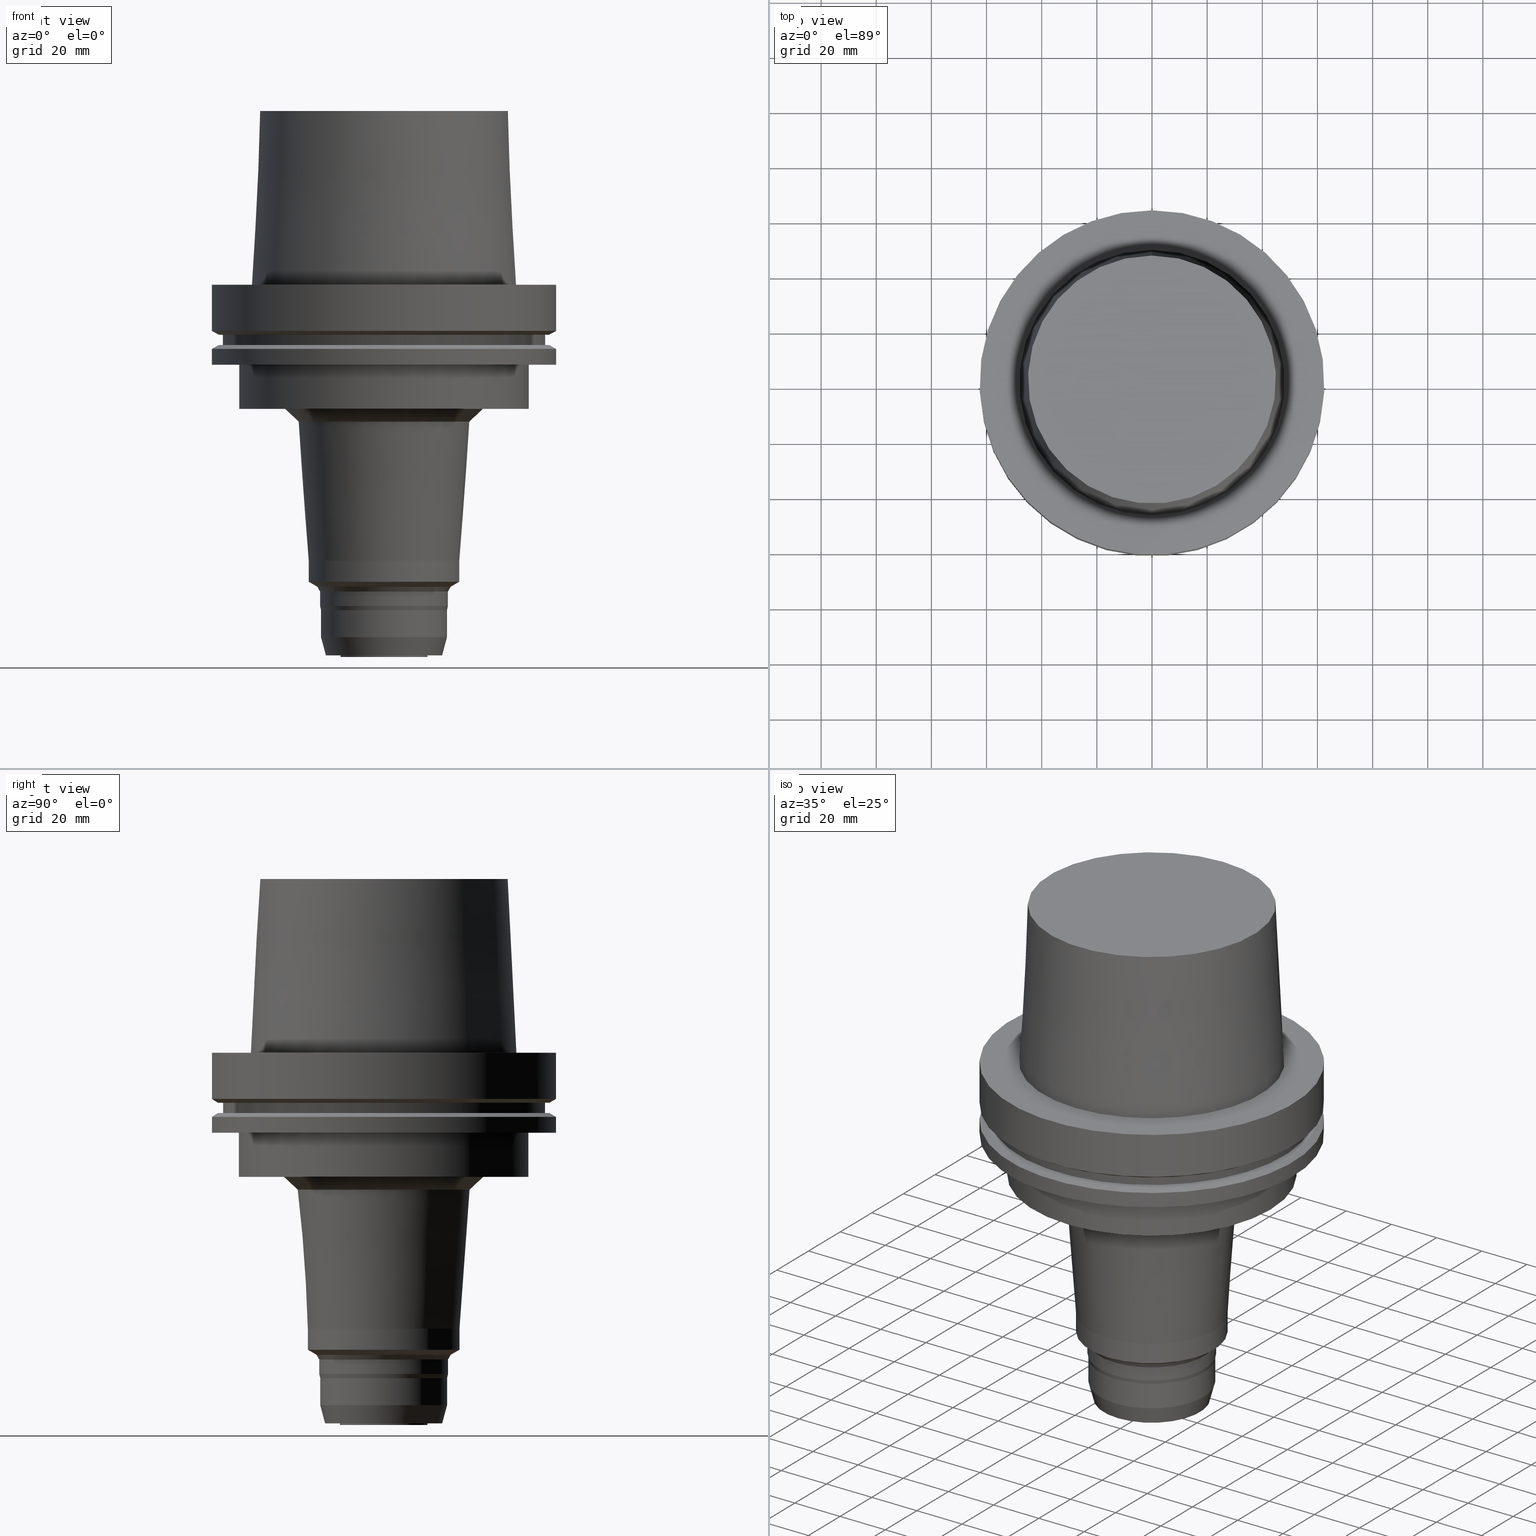
[diagram: canonical four-view strip — front | top / right | iso, engineering-drawing reading convention]
A machine part, canonical four-view strip (front | top / right | iso — engineering-drawing reading convention). The complete STEP part file that produces these views, byte-faithful:
ISO-10303-21;
HEADER;
FILE_DESCRIPTION((''),'1');
FILE_NAME('V:/02_3D_Field-HP\X2\FF71FF6FFF8CFF9F5916\X0\2013/02_Step_Field-HP\X2\FF71FF6FFF8CFF9F5916\X0\2013/HSK-A125_20170711/HSK-A125-MEGA16DPG-135.stp','2017-07-31T06:24:14',(''),(''),'Spatial Interop R21 SP3','Kubotek KeyCreator 2011 V10.0.2 (22737)',' ');
FILE_SCHEMA(('automotive_design'));
ENDSEC;
DATA;
#1=MECHANICAL_DESIGN_GEOMETRIC_PRESENTATION_REPRESENTATION(' ',(#10,#11,#12,#13,#14,#15,#16,#17,#18,#19,#20,#21,#22,#23,#24,#25,#26,#27,#28,#29,#30,#31,#32,#33,#34,#35,#36,#37,#38,#39,#40,#41,#42,#43,#44,#45,#46,#47,#48,#49,#50,#51,#52,#53,#54,#55,#56,#57,#58,#59),#6);
#2=PRODUCT_DEFINITION_CONTEXT('',#60,'design');
#3=APPLICATION_PROTOCOL_DEFINITION('INTERNATIONAL STANDARD','automotive_design',1994,#60);
#4=PRODUCT_CATEGORY_RELATIONSHIP('NONE','NONE',#61,#62);
#5=SHAPE_DEFINITION_REPRESENTATION(#63,#64);
#6= (GEOMETRIC_REPRESENTATION_CONTEXT(3)GLOBAL_UNCERTAINTY_ASSIGNED_CONTEXT((#67))GLOBAL_UNIT_ASSIGNED_CONTEXT((#69,#70,#71))REPRESENTATION_CONTEXT('NONE','WORKSPACE'));
#10=STYLED_ITEM('',(#73,#74),#75);
#11=STYLED_ITEM('',(#76,#77),#78);
#12=STYLED_ITEM('',(#79,#80),#81);
#13=STYLED_ITEM('',(#82),#83);
#14=STYLED_ITEM('',(#84),#85);
#15=STYLED_ITEM('',(#86,#87),#88);
#16=STYLED_ITEM('',(#89),#90);
#17=STYLED_ITEM('',(#91),#92);
#18=STYLED_ITEM('',(#93),#94);
#19=STYLED_ITEM('',(#95,#96),#97);
#20=STYLED_ITEM('',(#98,#99),#100);
#21=STYLED_ITEM('',(#101,#102),#103);
#22=STYLED_ITEM('',(#104,#105),#106);
#23=STYLED_ITEM('',(#107,#108),#109);
#24=STYLED_ITEM('',(#110),#111);
#25=STYLED_ITEM('',(#112),#113);
#26=STYLED_ITEM('',(#114),#115);
#27=STYLED_ITEM('',(#116,#117),#118);
#28=STYLED_ITEM('',(#119,#120),#121);
#29=STYLED_ITEM('',(#122,#123),#124);
#30=STYLED_ITEM('',(#125),#126);
#31=STYLED_ITEM('',(#127,#128),#129);
#32=STYLED_ITEM('',(#130),#131);
#33=STYLED_ITEM('',(#132,#133),#134);
#34=STYLED_ITEM('',(#135),#136);
#35=STYLED_ITEM('',(#137),#138);
#36=STYLED_ITEM('',(#139),#140);
#37=STYLED_ITEM('',(#141),#142);
#38=STYLED_ITEM('',(#143),#144);
#39=STYLED_ITEM('',(#145),#146);
#40=STYLED_ITEM('',(#147,#148),#149);
#41=STYLED_ITEM('',(#150,#151),#152);
#42=STYLED_ITEM('',(#153),#154);
#43=STYLED_ITEM('',(#155),#156);
#44=STYLED_ITEM('',(#157),#158);
#45=STYLED_ITEM('',(#159),#160);
#46=STYLED_ITEM('',(#161,#162),#163);
#47=STYLED_ITEM('',(#164,#165),#166);
#48=STYLED_ITEM('',(#167),#168);
#49=STYLED_ITEM('',(#169,#170),#171);
#50=STYLED_ITEM('',(#172,#173),#174);
#51=STYLED_ITEM('',(#175,#176),#177);
#52=STYLED_ITEM('',(#178),#179);
#53=STYLED_ITEM('',(#180),#181);
#54=STYLED_ITEM('',(#182),#183);
#55=STYLED_ITEM('',(#184,#185),#186);
#56=STYLED_ITEM('',(#187,#188),#189);
#57=STYLED_ITEM('',(#190,#191),#192);
#58=STYLED_ITEM('',(#193,#194),#195);
#59=STYLED_ITEM('',(#196,#197),#198);
#60=APPLICATION_CONTEXT(' ');
#61=PRODUCT_CATEGORY('part','NONE');
#62=PRODUCT_RELATED_PRODUCT_CATEGORY('detail',' ',(#199));
#63=PRODUCT_DEFINITION_SHAPE('NONE','NONE',#200);
#64=ADVANCED_BREP_SHAPE_REPRESENTATION('Unnamed[1]',(#78,#201),#6);
#67=UNCERTAINTY_MEASURE_WITH_UNIT(LENGTH_MEASURE(1.0E-006),#69,'','');
#69= (CONVERSION_BASED_UNIT('MILLIMETRE',#204)LENGTH_UNIT()NAMED_UNIT(#207));
#70= (NAMED_UNIT(#209)PLANE_ANGLE_UNIT()SI_UNIT($,.RADIAN.));
#71= (NAMED_UNIT(#209)SOLID_ANGLE_UNIT()SI_UNIT($,.STERADIAN.));
#73=PRESENTATION_STYLE_ASSIGNMENT((#215));
#74=PRESENTATION_STYLE_ASSIGNMENT((#216));
#75=ADVANCED_FACE('Unnamed[1]',(#217,#218),#219,.T.);
#76=PRESENTATION_STYLE_ASSIGNMENT((#220));
#77=PRESENTATION_STYLE_ASSIGNMENT((#221));
#78=MANIFOLD_SOLID_BREP('Unnamed[1]',#222);
#79=PRESENTATION_STYLE_ASSIGNMENT((#223));
#80=PRESENTATION_STYLE_ASSIGNMENT((#224));
#81=ADVANCED_FACE('Unnamed[1]',(#225,#226),#227,.T.);
#82=PRESENTATION_STYLE_ASSIGNMENT((#228));
#83=EDGE_CURVE('Unnamed[1]',#229,#229,#230,.T.);
#84=PRESENTATION_STYLE_ASSIGNMENT((#231));
#85=EDGE_CURVE('Unnamed[1]',#232,#232,#233,.T.);
#86=PRESENTATION_STYLE_ASSIGNMENT((#234));
#87=PRESENTATION_STYLE_ASSIGNMENT((#235));
#88=ADVANCED_FACE('Unnamed[1]',(#236,#237),#238,.T.);
#89=PRESENTATION_STYLE_ASSIGNMENT((#239));
#90=EDGE_CURVE('Unnamed[1]',#240,#240,#241,.T.);
#91=PRESENTATION_STYLE_ASSIGNMENT((#242));
#92=EDGE_CURVE('Unnamed[1]',#243,#243,#244,.T.);
#93=PRESENTATION_STYLE_ASSIGNMENT((#245));
#94=EDGE_CURVE('Unnamed[1]',#246,#246,#247,.T.);
#95=PRESENTATION_STYLE_ASSIGNMENT((#248));
#96=PRESENTATION_STYLE_ASSIGNMENT((#249));
#97=ADVANCED_FACE('Unnamed[1]',(#250,#251),#252,.T.);
#98=PRESENTATION_STYLE_ASSIGNMENT((#253));
#99=PRESENTATION_STYLE_ASSIGNMENT((#254));
#100=ADVANCED_FACE('Unnamed[1]',(#255,#256),#257,.T.);
#101=PRESENTATION_STYLE_ASSIGNMENT((#258));
#102=PRESENTATION_STYLE_ASSIGNMENT((#259));
#103=ADVANCED_FACE('Unnamed[1]',(#260,#261),#262,.T.);
#104=PRESENTATION_STYLE_ASSIGNMENT((#263));
#105=PRESENTATION_STYLE_ASSIGNMENT((#264));
#106=ADVANCED_FACE('Unnamed[1]',(#265,#266),#267,.T.);
#107=PRESENTATION_STYLE_ASSIGNMENT((#268));
#108=PRESENTATION_STYLE_ASSIGNMENT((#269));
#109=ADVANCED_FACE('Unnamed[1]',(#270,#271),#272,.T.);
#110=PRESENTATION_STYLE_ASSIGNMENT((#273));
#111=EDGE_CURVE('Unnamed[1]',#274,#274,#275,.T.);
#112=PRESENTATION_STYLE_ASSIGNMENT((#276));
#113=EDGE_CURVE('Unnamed[1]',#277,#277,#278,.T.);
#114=PRESENTATION_STYLE_ASSIGNMENT((#279));
#115=EDGE_CURVE('Unnamed[1]',#280,#280,#281,.T.);
#116=PRESENTATION_STYLE_ASSIGNMENT((#282));
#117=PRESENTATION_STYLE_ASSIGNMENT((#283));
#118=ADVANCED_FACE('Unnamed[1]',(#284,#285),#286,.T.);
#119=PRESENTATION_STYLE_ASSIGNMENT((#287));
#120=PRESENTATION_STYLE_ASSIGNMENT((#288));
#121=ADVANCED_FACE('Unnamed[1]',(#289,#290),#291,.T.);
#122=PRESENTATION_STYLE_ASSIGNMENT((#292));
#123=PRESENTATION_STYLE_ASSIGNMENT((#293));
#124=ADVANCED_FACE('Unnamed[1]',(#294,#295),#296,.T.);
#125=PRESENTATION_STYLE_ASSIGNMENT((#297));
#126=EDGE_CURVE('Unnamed[1]',#298,#298,#299,.T.);
#127=PRESENTATION_STYLE_ASSIGNMENT((#300));
#128=PRESENTATION_STYLE_ASSIGNMENT((#301));
#129=ADVANCED_FACE('Unnamed[1]',(#302,#303),#304,.T.);
#130=PRESENTATION_STYLE_ASSIGNMENT((#305));
#131=EDGE_CURVE('Unnamed[1]',#306,#306,#307,.T.);
#132=PRESENTATION_STYLE_ASSIGNMENT((#308));
#133=PRESENTATION_STYLE_ASSIGNMENT((#309));
#134=ADVANCED_FACE('Unnamed[1]',(#310,#311),#312,.T.);
#135=PRESENTATION_STYLE_ASSIGNMENT((#313));
#136=EDGE_CURVE('Unnamed[1]',#314,#314,#315,.T.);
#137=PRESENTATION_STYLE_ASSIGNMENT((#316));
#138=EDGE_CURVE('Unnamed[1]',#317,#317,#318,.T.);
#139=PRESENTATION_STYLE_ASSIGNMENT((#319));
#140=EDGE_CURVE('Unnamed[1]',#320,#320,#321,.T.);
#141=PRESENTATION_STYLE_ASSIGNMENT((#322));
#142=EDGE_CURVE('Unnamed[1]',#323,#323,#324,.T.);
#143=PRESENTATION_STYLE_ASSIGNMENT((#325));
#144=EDGE_CURVE('Unnamed[1]',#326,#326,#327,.T.);
#145=PRESENTATION_STYLE_ASSIGNMENT((#328));
#146=EDGE_CURVE('Unnamed[1]',#329,#329,#330,.T.);
#147=PRESENTATION_STYLE_ASSIGNMENT((#331));
#148=PRESENTATION_STYLE_ASSIGNMENT((#332));
#149=ADVANCED_FACE('Unnamed[1]',(#333,#334),#335,.T.);
#150=PRESENTATION_STYLE_ASSIGNMENT((#336));
#151=PRESENTATION_STYLE_ASSIGNMENT((#337));
#152=ADVANCED_FACE('Unnamed[1]',(#338,#339),#340,.T.);
#153=PRESENTATION_STYLE_ASSIGNMENT((#341));
#154=EDGE_CURVE('Unnamed[1]',#342,#342,#343,.T.);
#155=PRESENTATION_STYLE_ASSIGNMENT((#344));
#156=EDGE_CURVE('Unnamed[1]',#345,#345,#346,.T.);
#157=PRESENTATION_STYLE_ASSIGNMENT((#347));
#158=EDGE_CURVE('Unnamed[1]',#348,#348,#349,.T.);
#159=PRESENTATION_STYLE_ASSIGNMENT((#350));
#160=EDGE_CURVE('Unnamed[1]',#351,#351,#352,.T.);
#161=PRESENTATION_STYLE_ASSIGNMENT((#353));
#162=PRESENTATION_STYLE_ASSIGNMENT((#354));
#163=ADVANCED_FACE('Unnamed[1]',(#355,#356),#357,.T.);
#164=PRESENTATION_STYLE_ASSIGNMENT((#358));
#165=PRESENTATION_STYLE_ASSIGNMENT((#359));
#166=ADVANCED_FACE('Unnamed[1]',(#360,#361),#362,.T.);
#167=PRESENTATION_STYLE_ASSIGNMENT((#363));
#168=EDGE_CURVE('Unnamed[1]',#364,#364,#365,.T.);
#169=PRESENTATION_STYLE_ASSIGNMENT((#366));
#170=PRESENTATION_STYLE_ASSIGNMENT((#367));
#171=ADVANCED_FACE('Unnamed[1]',(#368,#369),#370,.T.);
#172=PRESENTATION_STYLE_ASSIGNMENT((#371));
#173=PRESENTATION_STYLE_ASSIGNMENT((#372));
#174=ADVANCED_FACE('Unnamed[1]',(#373,#374),#375,.T.);
#175=PRESENTATION_STYLE_ASSIGNMENT((#376));
#176=PRESENTATION_STYLE_ASSIGNMENT((#377));
#177=ADVANCED_FACE('Unnamed[1]',(#378,#379),#380,.T.);
#178=PRESENTATION_STYLE_ASSIGNMENT((#381));
#179=EDGE_CURVE('Unnamed[1]',#382,#382,#383,.T.);
#180=PRESENTATION_STYLE_ASSIGNMENT((#384));
#181=EDGE_CURVE('Unnamed[1]',#385,#385,#386,.T.);
#182=PRESENTATION_STYLE_ASSIGNMENT((#387));
#183=EDGE_CURVE('Unnamed[1]',#388,#388,#389,.T.);
#184=PRESENTATION_STYLE_ASSIGNMENT((#390));
#185=PRESENTATION_STYLE_ASSIGNMENT((#391));
#186=ADVANCED_FACE('Unnamed[1]',(#392,#393),#394,.T.);
#187=PRESENTATION_STYLE_ASSIGNMENT((#395));
#188=PRESENTATION_STYLE_ASSIGNMENT((#396));
#189=ADVANCED_FACE('Unnamed[1]',(#397,#398),#399,.T.);
#190=PRESENTATION_STYLE_ASSIGNMENT((#400));
#191=PRESENTATION_STYLE_ASSIGNMENT((#401));
#192=ADVANCED_FACE('Unnamed[1]',(#402),#403,.T.);
#193=PRESENTATION_STYLE_ASSIGNMENT((#404));
#194=PRESENTATION_STYLE_ASSIGNMENT((#405));
#195=ADVANCED_FACE('Unnamed[1]',(#406,#407),#408,.T.);
#196=PRESENTATION_STYLE_ASSIGNMENT((#409));
#197=PRESENTATION_STYLE_ASSIGNMENT((#410));
#198=ADVANCED_FACE('Unnamed[1]',(#411),#412,.T.);
#199=PRODUCT('Unnamed[1]','Unnamed[1]','PART-Unnamed[1]-DESC',(#413));
#200=PRODUCT_DEFINITION('NONE','NONE',#414,#2);
#201=AXIS2_PLACEMENT_3D('',#415,#416,#417);
#204=LENGTH_MEASURE_WITH_UNIT(LENGTH_MEASURE(1.0),#418);
#207=DIMENSIONAL_EXPONENTS(1.0,0.0,0.0,0.0,0.0,0.0,0.0);
#209=DIMENSIONAL_EXPONENTS(0.0,0.0,0.0,0.0,0.0,0.0,0.0);
#215=SURFACE_STYLE_USAGE(.BOTH.,#419);
#216=CURVE_STYLE('',#420,POSITIVE_LENGTH_MEASURE(1000.0),#421);
#217=FACE_BOUND('',#422,.T.);
#218=FACE_BOUND('',#423,.T.);
#219=CYLINDRICAL_SURFACE('',#424,62.5000000000001);
#220=SURFACE_STYLE_USAGE(.BOTH.,#425);
#221=CURVE_STYLE('',#426,POSITIVE_LENGTH_MEASURE(1000.0),#427);
#222=CLOSED_SHELL('',(#198,#163,#118,#75,#121,#103,#149,#189,#129,#174,#106,#171,#166,#124,#134,#88,#152,#195,#100,#109,#177,#186,#97,#81,#192));
#223=SURFACE_STYLE_USAGE(.BOTH.,#428);
#224=CURVE_STYLE('',#429,POSITIVE_LENGTH_MEASURE(1000.0),#430);
#225=FACE_BOUND('',#431,.T.);
#226=FACE_BOUND('',#432,.T.);
#227=CYLINDRICAL_SURFACE('',#433,15.8797695154583);
#228=CURVE_STYLE('',#434,POSITIVE_LENGTH_MEASURE(1000.0),#435);
#229=VERTEX_POINT('',#436);
#230=CIRCLE('',#437,62.5000000000002);
#231=CURVE_STYLE('',#438,POSITIVE_LENGTH_MEASURE(1000.0),#439);
#232=VERTEX_POINT('',#440);
#233=CIRCLE('',#441,62.5);
#234=SURFACE_STYLE_USAGE(.BOTH.,#442);
#235=CURVE_STYLE('',#443,POSITIVE_LENGTH_MEASURE(1000.0),#444);
#236=FACE_BOUND('',#445,.T.);
#237=FACE_BOUND('',#446,.T.);
#238=CYLINDRICAL_SURFACE('',#447,27.5000000000004);
#239=CURVE_STYLE('',#448,POSITIVE_LENGTH_MEASURE(1000.0),#449);
#240=VERTEX_POINT('',#450);
#241=CIRCLE('',#451,52.4999999999998);
#242=CURVE_STYLE('',#452,POSITIVE_LENGTH_MEASURE(1000.0),#453);
#243=VERTEX_POINT('',#454);
#244=CIRCLE('',#455,23.0000000000004);
#245=CURVE_STYLE('',#456,POSITIVE_LENGTH_MEASURE(1000.0),#457);
#246=VERTEX_POINT('',#458);
#247=CIRCLE('',#459,15.8797695154583);
#248=SURFACE_STYLE_USAGE(.BOTH.,#460);
#249=CURVE_STYLE('',#461,POSITIVE_LENGTH_MEASURE(1000.0),#462);
#250=FACE_BOUND('',#463,.T.);
#251=FACE_OUTER_BOUND('',#464,.T.);
#252=PLANE('',#465);
#253=SURFACE_STYLE_USAGE(.BOTH.,#466);
#254=CURVE_STYLE('',#467,POSITIVE_LENGTH_MEASURE(1000.0),#468);
#255=FACE_BOUND('',#469,.T.);
#256=FACE_BOUND('',#470,.T.);
#257=CYLINDRICAL_SURFACE('',#471,23.3500000000008);
#258=SURFACE_STYLE_USAGE(.BOTH.,#472);
#259=CURVE_STYLE('',#473,POSITIVE_LENGTH_MEASURE(1000.0),#474);
#260=FACE_BOUND('',#475,.T.);
#261=FACE_OUTER_BOUND('',#476,.T.);
#262=PLANE('',#477);
#263=SURFACE_STYLE_USAGE(.BOTH.,#478);
#264=CURVE_STYLE('',#479,POSITIVE_LENGTH_MEASURE(1000.0),#480);
#265=FACE_BOUND('',#481,.T.);
#266=FACE_OUTER_BOUND('',#482,.T.);
#267=PLANE('',#483);
#268=SURFACE_STYLE_USAGE(.BOTH.,#484);
#269=CURVE_STYLE('',#485,POSITIVE_LENGTH_MEASURE(1000.0),#486);
#270=FACE_BOUND('',#487,.T.);
#271=FACE_BOUND('',#488,.T.);
#272=CONICAL_SURFACE('',#489,23.1750000000006,0.229231933277223);
#273=CURVE_STYLE('',#490,POSITIVE_LENGTH_MEASURE(1000.0),#491);
#274=VERTEX_POINT('',#492);
#275=CIRCLE('',#493,44.9779398797591);
#276=CURVE_STYLE('',#494,POSITIVE_LENGTH_MEASURE(1000.0),#495);
#277=VERTEX_POINT('',#496);
#278=CIRCLE('',#497,48.1342525050097);
#279=CURVE_STYLE('',#498,POSITIVE_LENGTH_MEASURE(1000.0),#499);
#280=VERTEX_POINT('',#500);
#281=CIRCLE('',#501,62.5);
#282=SURFACE_STYLE_USAGE(.BOTH.,#502);
#283=CURVE_STYLE('',#503,POSITIVE_LENGTH_MEASURE(1000.0),#504);
#284=FACE_OUTER_BOUND('',#505,.T.);
#285=FACE_BOUND('',#506,.T.);
#286=PLANE('',#507);
#287=SURFACE_STYLE_USAGE(.BOTH.,#508);
#288=CURVE_STYLE('',#509,POSITIVE_LENGTH_MEASURE(1000.0),#510);
#289=FACE_BOUND('',#511,.T.);
#290=FACE_BOUND('',#512,.T.);
#291=CONICAL_SURFACE('',#513,61.3112976320956,1.04719755119668);
#292=SURFACE_STYLE_USAGE(.BOTH.,#514);
#293=CURVE_STYLE('',#515,POSITIVE_LENGTH_MEASURE(1000.0),#516);
#294=FACE_BOUND('',#517,.T.);
#295=FACE_BOUND('',#518,.T.);
#296=CONICAL_SURFACE('',#519,33.6561547954077,0.821697890262664);
#297=CURVE_STYLE('',#520,POSITIVE_LENGTH_MEASURE(1000.0),#521);
#298=VERTEX_POINT('',#522);
#299=CIRCLE('',#523,27.5000000000004);
#300=SURFACE_STYLE_USAGE(.BOTH.,#524);
#301=CURVE_STYLE('',#525,POSITIVE_LENGTH_MEASURE(1000.0),#526);
#302=FACE_BOUND('',#527,.T.);
#303=FACE_BOUND('',#528,.T.);
#304=CONICAL_SURFACE('',#529,61.311297632097,1.04719755119646);
#305=CURVE_STYLE('',#530,POSITIVE_LENGTH_MEASURE(1000.0),#531);
#306=VERTEX_POINT('',#532);
#307=CIRCLE('',#533,58.4999999999998);
#308=SURFACE_STYLE_USAGE(.BOTH.,#534);
#309=CURVE_STYLE('',#535,POSITIVE_LENGTH_MEASURE(1000.0),#536);
#310=FACE_BOUND('',#537,.T.);
#311=FACE_BOUND('',#538,.T.);
#312=CONICAL_SURFACE('',#539,29.3313701265056,0.0725994537304328);
#313=CURVE_STYLE('',#540,POSITIVE_LENGTH_MEASURE(1000.0),#541);
#314=VERTEX_POINT('',#542);
#315=CIRCLE('',#543,60.1225952641912);
#316=CURVE_STYLE('',#544,POSITIVE_LENGTH_MEASURE(1000.0),#545);
#317=VERTEX_POINT('',#546);
#318=CIRCLE('',#547,24.3500000000004);
#319=CURVE_STYLE('',#548,POSITIVE_LENGTH_MEASURE(1000.0),#549);
#320=VERTEX_POINT('',#550);
#321=CIRCLE('',#551,23.3500000000008);
#322=CURVE_STYLE('',#552,POSITIVE_LENGTH_MEASURE(1000.0),#553);
#323=VERTEX_POINT('',#554);
#324=CIRCLE('',#555,36.1495693378047);
#325=CURVE_STYLE('',#556,POSITIVE_LENGTH_MEASURE(1000.0),#557);
#326=VERTEX_POINT('',#558);
#327=CIRCLE('',#559,60.122595264194);
#328=CURVE_STYLE('',#560,POSITIVE_LENGTH_MEASURE(1000.0),#561);
#329=VERTEX_POINT('',#562);
#330=CIRCLE('',#563,62.5);
#331=SURFACE_STYLE_USAGE(.BOTH.,#564);
#332=CURVE_STYLE('',#565,POSITIVE_LENGTH_MEASURE(1000.0),#566);
#333=FACE_BOUND('',#567,.T.);
#334=FACE_BOUND('',#568,.T.);
#335=CYLINDRICAL_SURFACE('',#569,58.4999999999999);
#336=SURFACE_STYLE_USAGE(.BOTH.,#570);
#337=CURVE_STYLE('',#571,POSITIVE_LENGTH_MEASURE(1000.0),#572);
#338=FACE_BOUND('',#573,.T.);
#339=FACE_BOUND('',#574,.T.);
#340=CONICAL_SURFACE('',#575,25.9250000000004,1.04719755119642);
#341=CURVE_STYLE('',#576,POSITIVE_LENGTH_MEASURE(1000.0),#577);
#342=VERTEX_POINT('',#578);
#343=CIRCLE('',#579,58.5);
#344=CURVE_STYLE('',#580,POSITIVE_LENGTH_MEASURE(1000.0),#581);
#345=VERTEX_POINT('',#582);
#346=CIRCLE('',#583,52.5000000000003);
#347=CURVE_STYLE('',#584,POSITIVE_LENGTH_MEASURE(1000.0),#585);
#348=VERTEX_POINT('',#586);
#349=CIRCLE('',#587,15.8797695154583);
#350=CURVE_STYLE('',#588,POSITIVE_LENGTH_MEASURE(1000.0),#589);
#351=VERTEX_POINT('',#590);
#352=CIRCLE('',#591,27.5000000000004);
#353=SURFACE_STYLE_USAGE(.BOTH.,#592);
#354=CURVE_STYLE('',#593,POSITIVE_LENGTH_MEASURE(1000.0),#594);
#355=FACE_BOUND('',#595,.T.);
#356=FACE_BOUND('',#596,.T.);
#357=CONICAL_SURFACE('',#597,46.5560961923844,0.0500583457465964);
#358=SURFACE_STYLE_USAGE(.BOTH.,#598);
#359=CURVE_STYLE('',#599,POSITIVE_LENGTH_MEASURE(1000.0),#600);
#360=FACE_BOUND('',#601,.T.);
#361=FACE_OUTER_BOUND('',#602,.T.);
#362=PLANE('',#603);
#363=CURVE_STYLE('',#604,POSITIVE_LENGTH_MEASURE(1000.0),#605);
#364=VERTEX_POINT('',#606);
#365=CIRCLE('',#607,23.3500000000008);
#366=SURFACE_STYLE_USAGE(.BOTH.,#608);
#367=CURVE_STYLE('',#609,POSITIVE_LENGTH_MEASURE(1000.0),#610);
#368=FACE_BOUND('',#611,.T.);
#369=FACE_BOUND('',#612,.T.);
#370=CYLINDRICAL_SURFACE('',#613,52.5);
#371=SURFACE_STYLE_USAGE(.BOTH.,#614);
#372=CURVE_STYLE('',#615,POSITIVE_LENGTH_MEASURE(1000.0),#616);
#373=FACE_BOUND('',#617,.T.);
#374=FACE_BOUND('',#618,.T.);
#375=CYLINDRICAL_SURFACE('',#619,62.5);
#376=SURFACE_STYLE_USAGE(.BOTH.,#620);
#377=CURVE_STYLE('',#621,POSITIVE_LENGTH_MEASURE(1000.0),#622);
#378=FACE_BOUND('',#623,.T.);
#379=FACE_BOUND('',#624,.T.);
#380=CYLINDRICAL_SURFACE('',#625,23.0000000000004);
#381=CURVE_STYLE('',#626,POSITIVE_LENGTH_MEASURE(1000.0),#627);
#382=VERTEX_POINT('',#628);
#383=CIRCLE('',#629,21.2315353299552);
#384=CURVE_STYLE('',#630,POSITIVE_LENGTH_MEASURE(1000.0),#631);
#385=VERTEX_POINT('',#632);
#386=CIRCLE('',#633,31.1627402530107);
#387=CURVE_STYLE('',#634,POSITIVE_LENGTH_MEASURE(1000.0),#635);
#388=VERTEX_POINT('',#636);
#389=CIRCLE('',#637,23.0000000000004);
#390=SURFACE_STYLE_USAGE(.BOTH.,#638);
#391=CURVE_STYLE('',#639,POSITIVE_LENGTH_MEASURE(1000.0),#640);
#392=FACE_BOUND('',#641,.T.);
#393=FACE_BOUND('',#642,.T.);
#394=CONICAL_SURFACE('',#643,22.1157676649778,0.261799387799154);
#395=SURFACE_STYLE_USAGE(.BOTH.,#644);
#396=CURVE_STYLE('',#645,POSITIVE_LENGTH_MEASURE(1000.0),#646);
#397=FACE_OUTER_BOUND('',#647,.T.);
#398=FACE_BOUND('',#648,.T.);
#399=PLANE('',#649);
#400=SURFACE_STYLE_USAGE(.BOTH.,#650);
#401=CURVE_STYLE('',#651,POSITIVE_LENGTH_MEASURE(1000.0),#652);
#402=FACE_OUTER_BOUND('',#653,.T.);
#403=PLANE('',#654);
#404=SURFACE_STYLE_USAGE(.BOTH.,#655);
#405=CURVE_STYLE('',#656,POSITIVE_LENGTH_MEASURE(1000.0),#657);
#406=FACE_BOUND('',#658,.T.);
#407=FACE_BOUND('',#659,.T.);
#408=CONICAL_SURFACE('',#660,23.8500000000006,0.523598775598191);
#409=SURFACE_STYLE_USAGE(.BOTH.,#661);
#410=CURVE_STYLE('',#662,POSITIVE_LENGTH_MEASURE(1000.0),#663);
#411=FACE_OUTER_BOUND('',#664,.T.);
#412=PLANE('',#665);
#413=PRODUCT_CONTEXT('',#60,'mechanical');
#414=PRODUCT_DEFINITION_FORMATION_WITH_SPECIFIED_SOURCE(' ','NONE',#199,.NOT_KNOWN.);
#415=CARTESIAN_POINT('',(0.0,0.0,0.0));
#416=DIRECTION('',(0.0,0.0,1.0));
#417=DIRECTION('',(1.0,0.0,0.0));
#418= (NAMED_UNIT(#207)LENGTH_UNIT()SI_UNIT(.MILLI.,.METRE.));
#419=SURFACE_SIDE_STYLE('',(#667));
#420=DRAUGHTING_PRE_DEFINED_CURVE_FONT('continuous');
#421=COLOUR_RGB('',0.0,1.0,0.0);
#422=EDGE_LOOP('',(#668));
#423=EDGE_LOOP('',(#669));
#424=AXIS2_PLACEMENT_3D('',#670,#671,#672);
#425=SURFACE_SIDE_STYLE('',(#673));
#426=DRAUGHTING_PRE_DEFINED_CURVE_FONT('continuous');
#427=COLOUR_RGB('',0.0,1.0,0.0);
#428=SURFACE_SIDE_STYLE('',(#674));
#429=DRAUGHTING_PRE_DEFINED_CURVE_FONT('continuous');
#430=COLOUR_RGB('',0.0,1.0,0.0);
#431=EDGE_LOOP('',(#675));
#432=EDGE_LOOP('',(#676));
#433=AXIS2_PLACEMENT_3D('',#677,#678,#679);
#434=DRAUGHTING_PRE_DEFINED_CURVE_FONT('continuous');
#435=COLOUR_RGB('',0.0,1.0,0.0);
#436=CARTESIAN_POINT('',(-5.58935713239973E-030,62.5000000000002,8.63540424946709E-014));
#437=AXIS2_PLACEMENT_3D('',#680,#681,#682);
#438=DRAUGHTING_PRE_DEFINED_CURVE_FONT('continuous');
#439=COLOUR_RGB('',0.0,1.0,0.0);
#440=CARTESIAN_POINT('',(1.02578894188644E-015,62.5,-16.7524047358084));
#441=AXIS2_PLACEMENT_3D('',#683,#684,#685);
#442=SURFACE_SIDE_STYLE('',(#686));
#443=DRAUGHTING_PRE_DEFINED_CURVE_FONT('continuous');
#444=COLOUR_RGB('',0.0,1.0,0.0);
#445=EDGE_LOOP('',(#687));
#446=EDGE_LOOP('',(#688));
#447=AXIS2_PLACEMENT_3D('',#689,#690,#691);
#448=DRAUGHTING_PRE_DEFINED_CURVE_FONT('continuous');
#449=COLOUR_RGB('',0.0,1.0,0.0);
#450=CARTESIAN_POINT('',(2.75545529808155E-015,52.4999999999998,-45.0));
#451=AXIS2_PLACEMENT_3D('',#692,#693,#694);
#452=DRAUGHTING_PRE_DEFINED_CURVE_FONT('continuous');
#453=COLOUR_RGB('',0.0,1.0,0.0);
#454=CARTESIAN_POINT('',(7.22541611496937E-015,23.0000000000004,-118.0));
#455=AXIS2_PLACEMENT_3D('',#695,#696,#697);
#456=DRAUGHTING_PRE_DEFINED_CURVE_FONT('continuous');
#457=COLOUR_RGB('',0.0,1.0,0.0);
#458=CARTESIAN_POINT('',(8.22962649027018E-015,15.8797695154583,-134.399999999999));
#459=AXIS2_PLACEMENT_3D('',#698,#699,#700);
#460=SURFACE_SIDE_STYLE('',(#701));
#461=DRAUGHTING_PRE_DEFINED_CURVE_FONT('continuous');
#462=COLOUR_RGB('',0.0,1.0,0.0);
#463=EDGE_LOOP('',(#702));
#464=EDGE_LOOP('',(#703));
#465=AXIS2_PLACEMENT_3D('',#704,#705,#706);
#466=SURFACE_SIDE_STYLE('',(#707));
#467=DRAUGHTING_PRE_DEFINED_CURVE_FONT('continuous');
#468=COLOUR_RGB('',0.0,1.0,0.0);
#469=EDGE_LOOP('',(#708));
#470=EDGE_LOOP('',(#709));
#471=AXIS2_PLACEMENT_3D('',#710,#711,#712);
#472=SURFACE_SIDE_STYLE('',(#713));
#473=DRAUGHTING_PRE_DEFINED_CURVE_FONT('continuous');
#474=COLOUR_RGB('',0.0,1.0,0.0);
#475=EDGE_LOOP('',(#714));
#476=EDGE_LOOP('',(#715));
#477=AXIS2_PLACEMENT_3D('',#716,#717,#718);
#478=SURFACE_SIDE_STYLE('',(#719));
#479=DRAUGHTING_PRE_DEFINED_CURVE_FONT('continuous');
#480=COLOUR_RGB('',0.0,1.0,0.0);
#481=EDGE_LOOP('',(#720));
#482=EDGE_LOOP('',(#721));
#483=AXIS2_PLACEMENT_3D('',#722,#723,#724);
#484=SURFACE_SIDE_STYLE('',(#725));
#485=DRAUGHTING_PRE_DEFINED_CURVE_FONT('continuous');
#486=COLOUR_RGB('',0.0,1.0,0.0);
#487=EDGE_LOOP('',(#726));
#488=EDGE_LOOP('',(#727));
#489=AXIS2_PLACEMENT_3D('',#728,#729,#730);
#490=DRAUGHTING_PRE_DEFINED_CURVE_FONT('continuous');
#491=COLOUR_RGB('',0.0,1.0,0.0);
#492=CARTESIAN_POINT('',(-3.85763741731416E-015,44.9779398797591,62.9999999999999));
#493=AXIS2_PLACEMENT_3D('',#731,#732,#733);
#494=DRAUGHTING_PRE_DEFINED_CURVE_FONT('continuous');
#495=COLOUR_RGB('',0.0,1.0,0.0);
#496=CARTESIAN_POINT('',(3.88342032297484E-029,48.1342525050097,-6.38005254174039E-013));
#497=AXIS2_PLACEMENT_3D('',#734,#735,#736);
#498=DRAUGHTING_PRE_DEFINED_CURVE_FONT('continuous');
#499=COLOUR_RGB('',0.0,1.0,0.0);
#500=CARTESIAN_POINT('',(1.42350465640827E-015,62.5,-23.2475952641916));
#501=AXIS2_PLACEMENT_3D('',#737,#738,#739);
#502=SURFACE_SIDE_STYLE('',(#740));
#503=DRAUGHTING_PRE_DEFINED_CURVE_FONT('continuous');
#504=COLOUR_RGB('',0.0,1.0,0.0);
#505=EDGE_LOOP('',(#741));
#506=EDGE_LOOP('',(#742));
#507=AXIS2_PLACEMENT_3D('',#743,#744,#745);
#508=SURFACE_SIDE_STYLE('',(#746));
#509=DRAUGHTING_PRE_DEFINED_CURVE_FONT('continuous');
#510=COLOUR_RGB('',0.0,1.0,0.0);
#511=EDGE_LOOP('',(#747));
#512=EDGE_LOOP('',(#748));
#513=AXIS2_PLACEMENT_3D('',#749,#750,#751);
#514=SURFACE_SIDE_STYLE('',(#752));
#515=DRAUGHTING_PRE_DEFINED_CURVE_FONT('continuous');
#516=COLOUR_RGB('',0.0,1.0,0.0);
#517=EDGE_LOOP('',(#753));
#518=EDGE_LOOP('',(#754));
#519=AXIS2_PLACEMENT_3D('',#755,#756,#757);
#520=DRAUGHTING_PRE_DEFINED_CURVE_FONT('continuous');
#521=COLOUR_RGB('',0.0,1.0,0.0);
#522=CARTESIAN_POINT('',(6.12323399573922E-015,27.5000000000004,-100.00000000004));
#523=AXIS2_PLACEMENT_3D('',#758,#759,#760);
#524=SURFACE_SIDE_STYLE('',(#761));
#525=DRAUGHTING_PRE_DEFINED_CURVE_FONT('continuous');
#526=COLOUR_RGB('',0.0,1.0,0.0);
#527=EDGE_LOOP('',(#762));
#528=EDGE_LOOP('',(#763));
#529=AXIS2_PLACEMENT_3D('',#764,#765,#766);
#530=DRAUGHTING_PRE_DEFINED_CURVE_FONT('continuous');
#531=COLOUR_RGB('',0.0,1.0,0.0);
#532=CARTESIAN_POINT('',(1.33945743656732E-015,58.4999999999998,-21.8749999999984));
#533=AXIS2_PLACEMENT_3D('',#767,#768,#769);
#534=SURFACE_SIDE_STYLE('',(#770));
#535=DRAUGHTING_PRE_DEFINED_CURVE_FONT('continuous');
#536=COLOUR_RGB('',0.0,1.0,0.0);
#537=EDGE_LOOP('',(#771));
#538=EDGE_LOOP('',(#772));
#539=AXIS2_PLACEMENT_3D('',#773,#774,#775);
#540=DRAUGHTING_PRE_DEFINED_CURVE_FONT('continuous');
#541=COLOUR_RGB('',0.0,1.0,0.0);
#542=CARTESIAN_POINT('',(1.10983616172729E-015,60.1225952641912,-18.1250000000001));
#543=AXIS2_PLACEMENT_3D('',#776,#777,#778);
#544=DRAUGHTING_PRE_DEFINED_CURVE_FONT('continuous');
#545=COLOUR_RGB('',0.0,1.0,0.0);
#546=CARTESIAN_POINT('',(6.70632812134868E-015,24.3500000000005,-109.52264973081));
#547=AXIS2_PLACEMENT_3D('',#779,#780,#781);
#548=DRAUGHTING_PRE_DEFINED_CURVE_FONT('continuous');
#549=COLOUR_RGB('',0.0,1.0,0.0);
#550=CARTESIAN_POINT('',(6.81238564522116E-015,23.3500000000008,-111.254700538379));
#551=AXIS2_PLACEMENT_3D('',#782,#783,#784);
#552=DRAUGHTING_PRE_DEFINED_CURVE_FONT('continuous');
#553=COLOUR_RGB('',0.0,1.0,0.0);
#554=CARTESIAN_POINT('',(2.75545529808155E-015,36.1495693378047,-45.0));
#555=AXIS2_PLACEMENT_3D('',#785,#786,#787);
#556=DRAUGHTING_PRE_DEFINED_CURVE_FONT('continuous');
#557=COLOUR_RGB('',0.0,1.0,0.0);
#558=CARTESIAN_POINT('',(1.33945743656747E-015,60.122595264194,-21.8750000000009));
#559=AXIS2_PLACEMENT_3D('',#788,#789,#790);
#560=DRAUGHTING_PRE_DEFINED_CURVE_FONT('continuous');
#561=COLOUR_RGB('',0.0,1.0,0.0);
#562=CARTESIAN_POINT('',(1.77573785876367E-015,62.5,-29.0000000000001));
#563=AXIS2_PLACEMENT_3D('',#791,#792,#793);
#564=SURFACE_SIDE_STYLE('',(#794));
#565=DRAUGHTING_PRE_DEFINED_CURVE_FONT('continuous');
#566=COLOUR_RGB('',0.0,1.0,0.0);
#567=EDGE_LOOP('',(#795));
#568=EDGE_LOOP('',(#796));
#569=AXIS2_PLACEMENT_3D('',#797,#798,#799);
#570=SURFACE_SIDE_STYLE('',(#800));
#571=DRAUGHTING_PRE_DEFINED_CURVE_FONT('continuous');
#572=COLOUR_RGB('',0.0,1.0,0.0);
#573=EDGE_LOOP('',(#801));
#574=EDGE_LOOP('',(#802));
#575=AXIS2_PLACEMENT_3D('',#803,#804,#805);
#576=DRAUGHTING_PRE_DEFINED_CURVE_FONT('continuous');
#577=COLOUR_RGB('',0.0,1.0,0.0);
#578=CARTESIAN_POINT('',(1.10983616172739E-015,58.5,-18.1250000000017));
#579=AXIS2_PLACEMENT_3D('',#806,#807,#808);
#580=DRAUGHTING_PRE_DEFINED_CURVE_FONT('continuous');
#581=COLOUR_RGB('',0.0,1.0,0.0);
#582=CARTESIAN_POINT('',(1.77573785876367E-015,52.5000000000003,-29.0000000000001));
#583=AXIS2_PLACEMENT_3D('',#809,#810,#811);
#584=DRAUGHTING_PRE_DEFINED_CURVE_FONT('continuous');
#585=COLOUR_RGB('',0.0,1.0,0.0);
#586=CARTESIAN_POINT('',(8.26636589424456E-015,15.8797695154583,-134.999999999999));
#587=AXIS2_PLACEMENT_3D('',#812,#813,#814);
#588=DRAUGHTING_PRE_DEFINED_CURVE_FONT('continuous');
#589=COLOUR_RGB('',0.0,1.0,0.0);
#590=CARTESIAN_POINT('',(6.59496772128252E-015,27.5000000000004,-107.703996382862));
#591=AXIS2_PLACEMENT_3D('',#815,#816,#817);
#592=SURFACE_SIDE_STYLE('',(#818));
#593=DRAUGHTING_PRE_DEFINED_CURVE_FONT('continuous');
#594=COLOUR_RGB('',0.0,1.0,0.0);
#595=EDGE_LOOP('',(#819));
#596=EDGE_LOOP('',(#820));
#597=AXIS2_PLACEMENT_3D('',#821,#822,#823);
#598=SURFACE_SIDE_STYLE('',(#824));
#599=DRAUGHTING_PRE_DEFINED_CURVE_FONT('continuous');
#600=COLOUR_RGB('',0.0,1.0,0.0);
#601=EDGE_LOOP('',(#825));
#602=EDGE_LOOP('',(#826));
#603=AXIS2_PLACEMENT_3D('',#827,#828,#829);
#604=DRAUGHTING_PRE_DEFINED_CURVE_FONT('continuous');
#605=COLOUR_RGB('',0.0,1.0,0.0);
#606=CARTESIAN_POINT('',(7.13356760503331E-015,23.3500000000008,-116.5));
#607=AXIS2_PLACEMENT_3D('',#830,#831,#832);
#608=SURFACE_SIDE_STYLE('',(#833));
#609=DRAUGHTING_PRE_DEFINED_CURVE_FONT('continuous');
#610=COLOUR_RGB('',0.0,1.0,0.0);
#611=EDGE_LOOP('',(#834));
#612=EDGE_LOOP('',(#835));
#613=AXIS2_PLACEMENT_3D('',#836,#837,#838);
#614=SURFACE_SIDE_STYLE('',(#839));
#615=DRAUGHTING_PRE_DEFINED_CURVE_FONT('continuous');
#616=COLOUR_RGB('',0.0,1.0,0.0);
#617=EDGE_LOOP('',(#840));
#618=EDGE_LOOP('',(#841));
#619=AXIS2_PLACEMENT_3D('',#842,#843,#844);
#620=SURFACE_SIDE_STYLE('',(#845));
#621=DRAUGHTING_PRE_DEFINED_CURVE_FONT('continuous');
#622=COLOUR_RGB('',0.0,1.0,0.0);
#623=EDGE_LOOP('',(#846));
#624=EDGE_LOOP('',(#847));
#625=AXIS2_PLACEMENT_3D('',#848,#849,#850);
#626=DRAUGHTING_PRE_DEFINED_CURVE_FONT('continuous');
#627=COLOUR_RGB('',0.0,1.0,0.0);
#628=CARTESIAN_POINT('',(8.22962649027018E-015,21.2315353299552,-134.399999999999));
#629=AXIS2_PLACEMENT_3D('',#851,#852,#853);
#630=DRAUGHTING_PRE_DEFINED_CURVE_FONT('continuous');
#631=COLOUR_RGB('',0.0,1.0,0.0);
#632=CARTESIAN_POINT('',(3.03940934595354E-015,31.1627402530107,-49.6373215211062));
#633=AXIS2_PLACEMENT_3D('',#854,#855,#856);
#634=DRAUGHTING_PRE_DEFINED_CURVE_FONT('continuous');
#635=COLOUR_RGB('',0.0,1.0,0.0);
#636=CARTESIAN_POINT('',(7.8254930465516E-015,23.0000000000004,-127.8));
#637=AXIS2_PLACEMENT_3D('',#857,#858,#859);
#638=SURFACE_SIDE_STYLE('',(#860));
#639=DRAUGHTING_PRE_DEFINED_CURVE_FONT('continuous');
#640=COLOUR_RGB('',0.0,1.0,0.0);
#641=EDGE_LOOP('',(#861));
#642=EDGE_LOOP('',(#862));
#643=AXIS2_PLACEMENT_3D('',#863,#864,#865);
#644=SURFACE_SIDE_STYLE('',(#866));
#645=DRAUGHTING_PRE_DEFINED_CURVE_FONT('continuous');
#646=COLOUR_RGB('',0.0,1.0,0.0);
#647=EDGE_LOOP('',(#867));
#648=EDGE_LOOP('',(#868));
#649=AXIS2_PLACEMENT_3D('',#869,#870,#871);
#650=SURFACE_SIDE_STYLE('',(#872));
#651=DRAUGHTING_PRE_DEFINED_CURVE_FONT('continuous');
#652=COLOUR_RGB('',0.0,1.0,0.0);
#653=EDGE_LOOP('',(#873));
#654=AXIS2_PLACEMENT_3D('',#874,#875,#876);
#655=SURFACE_SIDE_STYLE('',(#877));
#656=DRAUGHTING_PRE_DEFINED_CURVE_FONT('continuous');
#657=COLOUR_RGB('',0.0,1.0,0.0);
#658=EDGE_LOOP('',(#878));
#659=EDGE_LOOP('',(#879));
#660=AXIS2_PLACEMENT_3D('',#880,#881,#882);
#661=SURFACE_SIDE_STYLE('',(#883));
#662=DRAUGHTING_PRE_DEFINED_CURVE_FONT('continuous');
#663=COLOUR_RGB('',0.0,1.0,0.0);
#664=EDGE_LOOP('',(#884));
#665=AXIS2_PLACEMENT_3D('',#885,#886,#887);
#667=SURFACE_STYLE_FILL_AREA(#888);
#668=ORIENTED_EDGE('',*,*,#85,.F.);
#669=ORIENTED_EDGE('',*,*,#83,.T.);
#670=CARTESIAN_POINT('',(5.12894470943215E-016,1.02578894188643E-015,-8.37620236790416));
#671=DIRECTION('',(6.12323399573677E-017,1.22464679914735E-016,-1.0));
#672=DIRECTION('',(-1.23259516440783E-032,1.0,1.22464679914735E-016));
#673=SURFACE_STYLE_FILL_AREA(#889);
#674=SURFACE_STYLE_FILL_AREA(#890);
#675=ORIENTED_EDGE('',*,*,#158,.F.);
#676=ORIENTED_EDGE('',*,*,#94,.T.);
#677=CARTESIAN_POINT('',(8.24799619225737E-015,1.64959923845147E-014,-134.699999999999));
#678=DIRECTION('',(6.12323399573677E-017,1.22464679914735E-016,-1.0));
#679=DIRECTION('',(-1.23259516440783E-032,1.0,1.22464679914735E-016));
#680=CARTESIAN_POINT('',(-5.22098332203606E-030,-1.04419666440721E-029,8.5265128291212E-014));
#681=DIRECTION('',(6.12323399573677E-017,1.22464679914735E-016,-1.0));
#682=DIRECTION('',(-1.23259516440783E-032,1.0,1.22464679914735E-016));
#683=CARTESIAN_POINT('',(1.02578894188644E-015,2.05157788377287E-015,-16.7524047358084));
#684=DIRECTION('',(6.12323399573676E-017,1.22464679914735E-016,-1.0));
#685=DIRECTION('',(-1.23259516440783E-032,1.0,1.22464679914735E-016));
#686=SURFACE_STYLE_FILL_AREA(#891);
#687=ORIENTED_EDGE('',*,*,#160,.F.);
#688=ORIENTED_EDGE('',*,*,#126,.T.);
#689=CARTESIAN_POINT('',(6.35910085851087E-015,1.27182017170217E-014,-103.851998191451));
#690=DIRECTION('',(6.12323399573677E-017,1.22464679914735E-016,-1.0));
#691=DIRECTION('',(-1.23259516440783E-032,1.0,1.22464679914735E-016));
#692=CARTESIAN_POINT('',(2.75545529808155E-015,5.51091059616309E-015,-45.0));
#693=DIRECTION('',(6.12323399573677E-017,1.22464679914735E-016,-1.0));
#694=DIRECTION('',(-1.23259516440783E-032,1.0,1.22464679914735E-016));
#695=CARTESIAN_POINT('',(7.22541611496937E-015,1.44508322299387E-014,-118.0));
#696=DIRECTION('',(6.12323399573677E-017,1.22464679914735E-016,-1.0));
#697=DIRECTION('',(-1.23259516440783E-032,1.0,1.22464679914735E-016));
#698=CARTESIAN_POINT('',(8.22962649027018E-015,1.64592529805404E-014,-134.399999999999));
#699=DIRECTION('',(6.12323399573677E-017,1.22464679914735E-016,-1.0));
#700=DIRECTION('',(-1.23259516440783E-032,1.0,1.22464679914735E-016));
#701=SURFACE_STYLE_FILL_AREA(#892);
#702=ORIENTED_EDGE('',*,*,#94,.F.);
#703=ORIENTED_EDGE('',*,*,#179,.T.);
#704=CARTESIAN_POINT('',(8.22962649027018E-015,18.5556524227068,-134.399999999999));
#705=DIRECTION('',(6.12323399573677E-017,1.22464679914735E-016,-1.0));
#706=DIRECTION('',(-1.23259516440783E-032,1.0,1.22464679914735E-016));
#707=SURFACE_STYLE_FILL_AREA(#893);
#708=ORIENTED_EDGE('',*,*,#168,.F.);
#709=ORIENTED_EDGE('',*,*,#140,.T.);
#710=CARTESIAN_POINT('',(6.97297662512724E-015,1.39459532502545E-014,-113.877350269189));
#711=DIRECTION('',(6.12323399573677E-017,1.22464679914735E-016,-1.0));
#712=DIRECTION('',(-1.23259516440783E-032,1.0,1.22464679914735E-016));
#713=SURFACE_STYLE_FILL_AREA(#894);
#714=ORIENTED_EDGE('',*,*,#154,.F.);
#715=ORIENTED_EDGE('',*,*,#136,.T.);
#716=CARTESIAN_POINT('',(1.10983616172734E-015,59.3112976320956,-18.1250000000009));
#717=DIRECTION('',(6.12323399573677E-017,9.85408931824386E-013,-1.0));
#718=DIRECTION('',(-6.03437218632281E-029,1.0,9.85408931824386E-013));
#719=SURFACE_STYLE_FILL_AREA(#895);
#720=ORIENTED_EDGE('',*,*,#156,.F.);
#721=ORIENTED_EDGE('',*,*,#146,.T.);
#722=CARTESIAN_POINT('',(1.77573785876367E-015,57.5000000000001,-29.0000000000001));
#723=DIRECTION('',(6.12323399573677E-017,1.22464679914735E-016,-1.0));
#724=DIRECTION('',(-1.23259516440783E-032,1.0,1.22464679914735E-016));
#725=SURFACE_STYLE_FILL_AREA(#896);
#726=ORIENTED_EDGE('',*,*,#92,.F.);
#727=ORIENTED_EDGE('',*,*,#168,.T.);
#728=CARTESIAN_POINT('',(7.17949186000134E-015,1.43589837200027E-014,-117.25));
#729=DIRECTION('',(-6.12323399573677E-017,-1.22464679914735E-016,1.0));
#730=DIRECTION('',(-1.23259516440783E-032,1.0,1.22464679914735E-016));
#731=CARTESIAN_POINT('',(-3.85763741731416E-015,-7.71527483462831E-015,62.9999999999999));
#732=DIRECTION('',(6.12323399573677E-017,1.22464679914735E-016,-1.0));
#733=DIRECTION('',(-1.23259516440783E-032,1.0,1.22464679914735E-016));
#734=CARTESIAN_POINT('',(4.00275388022765E-029,8.00550776045529E-029,-6.53699316899292E-013));
#735=DIRECTION('',(6.12323399573677E-017,1.22464679914735E-016,-1.0));
#736=DIRECTION('',(-1.23259516440783E-032,1.0,1.22464679914735E-016));
#737=CARTESIAN_POINT('',(1.42350465640827E-015,2.84700931281654E-015,-23.2475952641916));
#738=DIRECTION('',(6.12323399573677E-017,1.22464679914735E-016,-1.0));
#739=DIRECTION('',(-1.23259516440783E-032,1.0,1.22464679914735E-016));
#740=SURFACE_STYLE_FILL_AREA(#897);
#741=ORIENTED_EDGE('',*,*,#83,.F.);
#742=ORIENTED_EDGE('',*,*,#113,.T.);
#743=CARTESIAN_POINT('',(1.66224230486744E-029,55.317126252505,-2.75825605839684E-013));
#744=DIRECTION('',(-6.12323399573677E-017,-5.04226666187264E-014,1.0));
#745=DIRECTION('',(3.09232501668564E-030,-1.0,-5.04226666187264E-014));
#746=SURFACE_STYLE_FILL_AREA(#898);
#747=ORIENTED_EDGE('',*,*,#136,.F.);
#748=ORIENTED_EDGE('',*,*,#85,.T.);
#749=CARTESIAN_POINT('',(1.06781255180686E-015,2.13562510361373E-015,-17.4387023679042));
#750=DIRECTION('',(-6.12323399573676E-017,-1.22464679914735E-016,1.0));
#751=DIRECTION('',(-1.23259516440783E-032,1.0,1.22464679914735E-016));
#752=SURFACE_STYLE_FILL_AREA(#899);
#753=ORIENTED_EDGE('',*,*,#181,.F.);
#754=ORIENTED_EDGE('',*,*,#142,.T.);
#755=CARTESIAN_POINT('',(2.89743232201754E-015,5.79486464403508E-015,-47.3186607605531));
#756=DIRECTION('',(-6.12323399573677E-017,-1.22464679914735E-016,1.0));
#757=DIRECTION('',(-1.23259516440783E-032,1.0,1.22464679914735E-016));
#758=CARTESIAN_POINT('',(6.12323399573922E-015,1.22464679914784E-014,-100.00000000004));
#759=DIRECTION('',(6.12323399573677E-017,1.22464679914735E-016,-1.0));
#760=DIRECTION('',(-1.23259516440783E-032,1.0,1.22464679914735E-016));
#761=SURFACE_STYLE_FILL_AREA(#900);
#762=ORIENTED_EDGE('',*,*,#115,.F.);
#763=ORIENTED_EDGE('',*,*,#144,.T.);
#764=CARTESIAN_POINT('',(1.38148104648787E-015,2.76296209297574E-015,-22.5612976320962));
#765=DIRECTION('',(6.12323399573677E-017,1.22464679914735E-016,-1.0));
#766=DIRECTION('',(-1.23259516440783E-032,1.0,1.22464679914735E-016));
#767=CARTESIAN_POINT('',(1.33945743656732E-015,2.67891487313464E-015,-21.8749999999984));
#768=DIRECTION('',(6.12323399573677E-017,1.22464679914735E-016,-1.0));
#769=DIRECTION('',(-1.23259516440783E-032,1.0,1.22464679914735E-016));
#770=SURFACE_STYLE_FILL_AREA(#901);
#771=ORIENTED_EDGE('',*,*,#126,.F.);
#772=ORIENTED_EDGE('',*,*,#181,.T.);
#773=CARTESIAN_POINT('',(4.58132167084638E-015,9.16264334169275E-015,-74.8186607605731));
#774=DIRECTION('',(-6.12323399573677E-017,-1.22464679914735E-016,1.0));
#775=DIRECTION('',(-1.23259516440783E-032,1.0,1.22464679914735E-016));
#776=CARTESIAN_POINT('',(1.10983616172729E-015,2.21967232345459E-015,-18.1250000000001));
#777=DIRECTION('',(6.12323399573677E-017,1.22464679914735E-016,-1.0));
#778=DIRECTION('',(-1.23259516440783E-032,1.0,1.22464679914735E-016));
#779=CARTESIAN_POINT('',(6.70632812134868E-015,1.34126562426974E-014,-109.52264973081));
#780=DIRECTION('',(6.12323399573676E-017,1.22464679914735E-016,-1.0));
#781=DIRECTION('',(-1.23259516440783E-032,1.0,1.22464679914735E-016));
#782=CARTESIAN_POINT('',(6.81238564522116E-015,1.36247712904423E-014,-111.254700538379));
#783=DIRECTION('',(6.12323399573677E-017,1.22464679914735E-016,-1.0));
#784=DIRECTION('',(-1.23259516440783E-032,1.0,1.22464679914735E-016));
#785=CARTESIAN_POINT('',(2.75545529808155E-015,5.51091059616309E-015,-45.0));
#786=DIRECTION('',(6.12323399573677E-017,1.22464679914735E-016,-1.0));
#787=DIRECTION('',(-1.23259516440783E-032,1.0,1.22464679914735E-016));
#788=CARTESIAN_POINT('',(1.33945743656747E-015,2.67891487313494E-015,-21.8750000000009));
#789=DIRECTION('',(6.12323399573677E-017,1.22464679914735E-016,-1.0));
#790=DIRECTION('',(-1.23259516440783E-032,1.0,1.22464679914735E-016));
#791=CARTESIAN_POINT('',(1.77573785876367E-015,3.55147571752733E-015,-29.0000000000001));
#792=DIRECTION('',(6.12323399573677E-017,1.22464679914735E-016,-1.0));
#793=DIRECTION('',(-1.23259516440783E-032,1.0,1.22464679914735E-016));
#794=SURFACE_STYLE_FILL_AREA(#902);
#795=ORIENTED_EDGE('',*,*,#131,.F.);
#796=ORIENTED_EDGE('',*,*,#154,.T.);
#797=CARTESIAN_POINT('',(1.22464679914736E-015,2.44929359829471E-015,-20.0));
#798=DIRECTION('',(6.12323399573677E-017,1.22464679914735E-016,-1.0));
#799=DIRECTION('',(-1.23259516440783E-032,1.0,1.22464679914735E-016));
#800=SURFACE_STYLE_FILL_AREA(#903);
#801=ORIENTED_EDGE('',*,*,#138,.F.);
#802=ORIENTED_EDGE('',*,*,#160,.T.);
#803=CARTESIAN_POINT('',(6.6506479213156E-015,1.33012958426312E-014,-108.613323056836));
#804=DIRECTION('',(-6.12323399573677E-017,-1.22464679914735E-016,1.0));
#805=DIRECTION('',(-1.23259516440783E-032,1.0,1.22464679914735E-016));
#806=CARTESIAN_POINT('',(1.10983616172739E-015,2.21967232345478E-015,-18.1250000000017));
#807=DIRECTION('',(6.12323399573677E-017,1.22464679914735E-016,-1.0));
#808=DIRECTION('',(-1.23259516440783E-032,1.0,1.22464679914735E-016));
#809=CARTESIAN_POINT('',(1.77573785876367E-015,3.55147571752733E-015,-29.0000000000001));
#810=DIRECTION('',(6.12323399573677E-017,1.22464679914735E-016,-1.0));
#811=DIRECTION('',(-1.23259516440783E-032,1.0,1.22464679914735E-016));
#812=CARTESIAN_POINT('',(8.26636589424456E-015,1.65327317884891E-014,-134.999999999999));
#813=DIRECTION('',(6.12323399573677E-017,1.22464679914735E-016,-1.0));
#814=DIRECTION('',(-1.23259516440783E-032,1.0,1.22464679914735E-016));
#815=CARTESIAN_POINT('',(6.59496772128252E-015,1.3189935442565E-014,-107.703996382862));
#816=DIRECTION('',(6.12323399573677E-017,1.22464679914735E-016,-1.0));
#817=DIRECTION('',(-1.23259516440783E-032,1.0,1.22464679914735E-016));
#818=SURFACE_STYLE_FILL_AREA(#904);
#819=ORIENTED_EDGE('',*,*,#113,.F.);
#820=ORIENTED_EDGE('',*,*,#111,.T.);
#821=CARTESIAN_POINT('',(-1.92881870865706E-015,-3.85763741731412E-015,31.4999999999996));
#822=DIRECTION('',(6.12323399573676E-017,1.22464679914735E-016,-1.0));
#823=DIRECTION('',(-1.23259516440783E-032,1.0,1.22464679914735E-016));
#824=SURFACE_STYLE_FILL_AREA(#905);
#825=ORIENTED_EDGE('',*,*,#142,.F.);
#826=ORIENTED_EDGE('',*,*,#90,.T.);
#827=CARTESIAN_POINT('',(2.75545529808155E-015,44.3247846689022,-45.0));
#828=DIRECTION('',(6.12323399573677E-017,1.22464679914735E-016,-1.0));
#829=DIRECTION('',(-1.23259516440783E-032,1.0,1.22464679914735E-016));
#830=CARTESIAN_POINT('',(7.13356760503331E-015,1.42671352100666E-014,-116.5));
#831=DIRECTION('',(6.12323399573677E-017,1.22464679914735E-016,-1.0));
#832=DIRECTION('',(-1.23259516440783E-032,1.0,1.22464679914735E-016));
#833=SURFACE_STYLE_FILL_AREA(#906);
#834=ORIENTED_EDGE('',*,*,#90,.F.);
#835=ORIENTED_EDGE('',*,*,#156,.T.);
#836=CARTESIAN_POINT('',(2.26559657842261E-015,4.53119315684521E-015,-37.0));
#837=DIRECTION('',(6.12323399573677E-017,1.22464679914735E-016,-1.0));
#838=DIRECTION('',(-1.23259516440783E-032,1.0,1.22464679914735E-016));
#839=SURFACE_STYLE_FILL_AREA(#907);
#840=ORIENTED_EDGE('',*,*,#146,.F.);
#841=ORIENTED_EDGE('',*,*,#115,.T.);
#842=CARTESIAN_POINT('',(1.59962125758597E-015,3.19924251517194E-015,-26.1237976320958));
#843=DIRECTION('',(6.12323399573677E-017,1.22464679914735E-016,-1.0));
#844=DIRECTION('',(-1.23259516440783E-032,1.0,1.22464679914735E-016));
#845=SURFACE_STYLE_FILL_AREA(#908);
#846=ORIENTED_EDGE('',*,*,#183,.F.);
#847=ORIENTED_EDGE('',*,*,#92,.T.);
#848=CARTESIAN_POINT('',(7.52545458076048E-015,1.5050909161521E-014,-122.9));
#849=DIRECTION('',(6.12323399573677E-017,1.22464679914735E-016,-1.0));
#850=DIRECTION('',(-1.23259516440783E-032,1.0,1.22464679914735E-016));
#851=CARTESIAN_POINT('',(8.22962649027018E-015,1.64592529805404E-014,-134.399999999999));
#852=DIRECTION('',(6.12323399573677E-017,1.22464679914735E-016,-1.0));
#853=DIRECTION('',(-1.23259516440783E-032,1.0,1.22464679914735E-016));
#854=CARTESIAN_POINT('',(3.03940934595354E-015,6.07881869190708E-015,-49.6373215211062));
#855=DIRECTION('',(6.12323399573676E-017,1.22464679914735E-016,-1.0));
#856=DIRECTION('',(-1.23259516440783E-032,1.0,1.22464679914735E-016));
#857=CARTESIAN_POINT('',(7.8254930465516E-015,1.56509860931032E-014,-127.8));
#858=DIRECTION('',(6.12323399573677E-017,1.22464679914735E-016,-1.0));
#859=DIRECTION('',(-1.23259516440783E-032,1.0,1.22464679914735E-016));
#860=SURFACE_STYLE_FILL_AREA(#909);
#861=ORIENTED_EDGE('',*,*,#179,.F.);
#862=ORIENTED_EDGE('',*,*,#183,.T.);
#863=CARTESIAN_POINT('',(8.02755976841089E-015,1.60551195368218E-014,-131.1));
#864=DIRECTION('',(-6.12323399573677E-017,-1.22464679914735E-016,1.0));
#865=DIRECTION('',(-1.23259516440783E-032,1.0,1.22464679914735E-016));
#866=SURFACE_STYLE_FILL_AREA(#910);
#867=ORIENTED_EDGE('',*,*,#144,.F.);
#868=ORIENTED_EDGE('',*,*,#131,.T.);
#869=CARTESIAN_POINT('',(1.33945743656739E-015,59.3112976320969,-21.8749999999996));
#870=DIRECTION('',(-6.12323399573677E-017,1.54130347502767E-012,1.0));
#871=DIRECTION('',(-9.43727912076354E-029,-1.0,1.54130347502767E-012));
#872=SURFACE_STYLE_FILL_AREA(#911);
#873=ORIENTED_EDGE('',*,*,#158,.T.);
#874=CARTESIAN_POINT('',(8.26636589424456E-015,7.93988475772918,-134.999999999999));
#875=DIRECTION('',(6.12323399573677E-017,1.22464679914735E-016,-1.0));
#876=DIRECTION('',(-1.23259516440783E-032,1.0,1.22464679914735E-016));
#877=SURFACE_STYLE_FILL_AREA(#912);
#878=ORIENTED_EDGE('',*,*,#140,.F.);
#879=ORIENTED_EDGE('',*,*,#138,.T.);
#880=CARTESIAN_POINT('',(6.75935688328492E-015,1.35187137665698E-014,-110.388675134595));
#881=DIRECTION('',(-6.12323399573677E-017,-1.22464679914735E-016,1.0));
#882=DIRECTION('',(-1.23259516440783E-032,1.0,1.22464679914735E-016));
#883=SURFACE_STYLE_FILL_AREA(#913);
#884=ORIENTED_EDGE('',*,*,#111,.F.);
#885=CARTESIAN_POINT('',(-3.85763741731416E-015,22.4889699398795,62.9999999999999));
#886=DIRECTION('',(-6.12323399573677E-017,-1.22464679914735E-016,1.0));
#887=DIRECTION('',(1.23259516440783E-032,-1.0,-1.22464679914735E-016));
#888=FILL_AREA_STYLE('',(#914));
#889=FILL_AREA_STYLE('',(#915));
#890=FILL_AREA_STYLE('',(#916));
#891=FILL_AREA_STYLE('',(#917));
#892=FILL_AREA_STYLE('',(#918));
#893=FILL_AREA_STYLE('',(#919));
#894=FILL_AREA_STYLE('',(#920));
#895=FILL_AREA_STYLE('',(#921));
#896=FILL_AREA_STYLE('',(#922));
#897=FILL_AREA_STYLE('',(#923));
#898=FILL_AREA_STYLE('',(#924));
#899=FILL_AREA_STYLE('',(#925));
#900=FILL_AREA_STYLE('',(#926));
#901=FILL_AREA_STYLE('',(#927));
#902=FILL_AREA_STYLE('',(#928));
#903=FILL_AREA_STYLE('',(#929));
#904=FILL_AREA_STYLE('',(#930));
#905=FILL_AREA_STYLE('',(#931));
#906=FILL_AREA_STYLE('',(#932));
#907=FILL_AREA_STYLE('',(#933));
#908=FILL_AREA_STYLE('',(#934));
#909=FILL_AREA_STYLE('',(#935));
#910=FILL_AREA_STYLE('',(#936));
#911=FILL_AREA_STYLE('',(#937));
#912=FILL_AREA_STYLE('',(#938));
#913=FILL_AREA_STYLE('',(#939));
#914=FILL_AREA_STYLE_COLOUR('',#940);
#915=FILL_AREA_STYLE_COLOUR('',#941);
#916=FILL_AREA_STYLE_COLOUR('',#942);
#917=FILL_AREA_STYLE_COLOUR('',#943);
#918=FILL_AREA_STYLE_COLOUR('',#944);
#919=FILL_AREA_STYLE_COLOUR('',#945);
#920=FILL_AREA_STYLE_COLOUR('',#946);
#921=FILL_AREA_STYLE_COLOUR('',#947);
#922=FILL_AREA_STYLE_COLOUR('',#948);
#923=FILL_AREA_STYLE_COLOUR('',#949);
#924=FILL_AREA_STYLE_COLOUR('',#950);
#925=FILL_AREA_STYLE_COLOUR('',#951);
#926=FILL_AREA_STYLE_COLOUR('',#952);
#927=FILL_AREA_STYLE_COLOUR('',#953);
#928=FILL_AREA_STYLE_COLOUR('',#954);
#929=FILL_AREA_STYLE_COLOUR('',#955);
#930=FILL_AREA_STYLE_COLOUR('',#956);
#931=FILL_AREA_STYLE_COLOUR('',#957);
#932=FILL_AREA_STYLE_COLOUR('',#958);
#933=FILL_AREA_STYLE_COLOUR('',#959);
#934=FILL_AREA_STYLE_COLOUR('',#960);
#935=FILL_AREA_STYLE_COLOUR('',#961);
#936=FILL_AREA_STYLE_COLOUR('',#962);
#937=FILL_AREA_STYLE_COLOUR('',#963);
#938=FILL_AREA_STYLE_COLOUR('',#964);
#939=FILL_AREA_STYLE_COLOUR('',#965);
#940=COLOUR_RGB('',0.0,1.0,0.0);
#941=COLOUR_RGB('',0.0,1.0,0.0);
#942=COLOUR_RGB('',0.0,1.0,0.0);
#943=COLOUR_RGB('',0.0,1.0,0.0);
#944=COLOUR_RGB('',0.0,1.0,0.0);
#945=COLOUR_RGB('',0.0,1.0,0.0);
#946=COLOUR_RGB('',0.0,1.0,0.0);
#947=COLOUR_RGB('',0.0,1.0,0.0);
#948=COLOUR_RGB('',0.0,1.0,0.0);
#949=COLOUR_RGB('',0.0,1.0,0.0);
#950=COLOUR_RGB('',0.0,1.0,0.0);
#951=COLOUR_RGB('',0.0,1.0,0.0);
#952=COLOUR_RGB('',0.0,1.0,0.0);
#953=COLOUR_RGB('',0.0,1.0,0.0);
#954=COLOUR_RGB('',0.0,1.0,0.0);
#955=COLOUR_RGB('',0.0,1.0,0.0);
#956=COLOUR_RGB('',0.0,1.0,0.0);
#957=COLOUR_RGB('',0.0,1.0,0.0);
#958=COLOUR_RGB('',0.0,1.0,0.0);
#959=COLOUR_RGB('',0.0,1.0,0.0);
#960=COLOUR_RGB('',0.0,1.0,0.0);
#961=COLOUR_RGB('',0.0,1.0,0.0);
#962=COLOUR_RGB('',0.0,1.0,0.0);
#963=COLOUR_RGB('',0.0,1.0,0.0);
#964=COLOUR_RGB('',0.0,1.0,0.0);
#965=COLOUR_RGB('',0.0,1.0,0.0);
ENDSEC;
END-ISO-10303-21;
